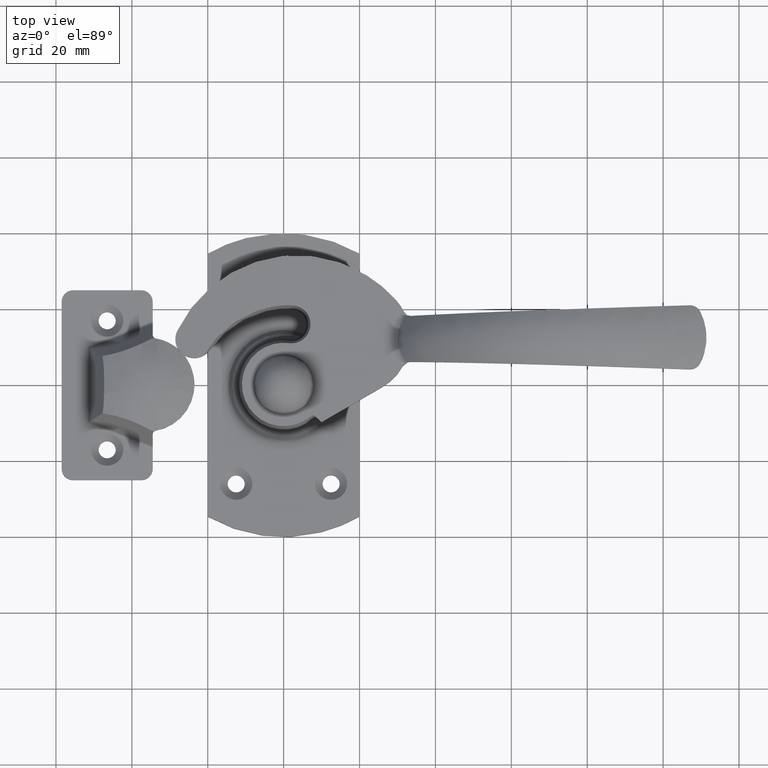
[diagram: clean part render]
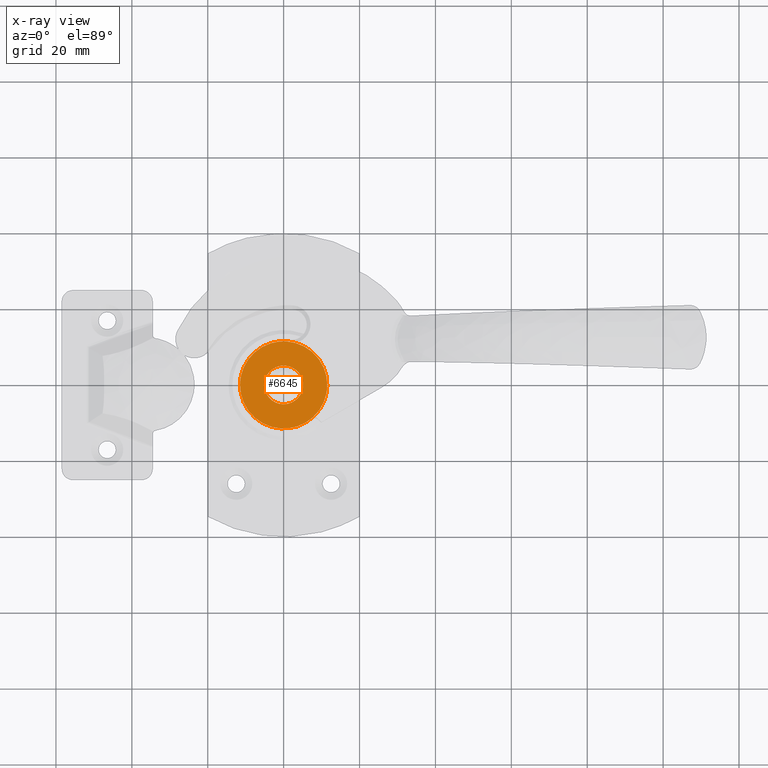
[diagram: x-ray — body ghosted, one internal face saturated and labeled with its STEP entity id]
A machine part, top view, then the same camera in x-ray: the body is ghosted and one INTERNAL B-rep face — a face not visible from any outside direction — is saturated and labeled: STEP entity #6645.
In plain terms, the highlighted face is a freeform B-spline surface patch.
Its self-contained STEP definition (entity closure, byte-faithful):
#6282=CARTESIAN_POINT('',(11.500000000000000,0.0,7.0));
#6283=VERTEX_POINT('',#6282);
#6284=CARTESIAN_POINT('',(0.902279601061048,11.464549337915949,7.0));
#6285=VERTEX_POINT('',#6284);
#6286=CARTESIAN_POINT('',(11.500000000000000,0.0,7.0));
#6287=CARTESIAN_POINT('',(11.499999999999998,10.630490653714393,6.999999999999998));
#6288=CARTESIAN_POINT('',(0.902279601061048,11.464549337915948,7.0));
#6296=(BOUNDED_CURVE()B_SPLINE_CURVE(2,(#6286,#6287,#6288),.UNSPECIFIED.,.F.,.U.)B_SPLINE_CURVE_WITH_KNOTS((3,3),(0.0,0.236331300627060),.UNSPECIFIED.)CURVE()GEOMETRIC_REPRESENTATION_ITEM()RATIONAL_B_SPLINE_CURVE((1.0,0.723120658611883,0.969723356159906))REPRESENTATION_ITEM(''));
#6297=EDGE_CURVE('',#6283,#6285,#6296,.T.);
#6338=CARTESIAN_POINT('',(-0.902279601061047,-11.464549337915949,7.0));
#6339=VERTEX_POINT('',#6338);
#6345=CARTESIAN_POINT('',(-0.902279601061047,-11.464549337915955,7.0));
#6346=CARTESIAN_POINT('',(-0.451836230779913,-11.500000000000004,7.0));
#6347=CARTESIAN_POINT('',(0.0,-11.500000000000000,7.0));
#6348=CARTESIAN_POINT('',(11.500000000000000,-11.500000000000000,6.999999999999999));
#6349=CARTESIAN_POINT('',(11.500000000000000,0.0,7.0));
#6357=(BOUNDED_CURVE()B_SPLINE_CURVE(2,(#6345,#6346,#6347,#6348,#6349),.UNSPECIFIED.,.F.,.U.)B_SPLINE_CURVE_WITH_KNOTS((3,2,3),(0.736331300627060,0.750000000000000,1.0),.UNSPECIFIED.)CURVE()GEOMETRIC_REPRESENTATION_ITEM()RATIONAL_B_SPLINE_CURVE((0.969723356159906,0.983986122574665,1.0,0.707106781186548,1.0))REPRESENTATION_ITEM(''));
#6358=EDGE_CURVE('',#6339,#6283,#6357,.T.);
#6381=CARTESIAN_POINT('',(-11.500000000000000,0.0,7.0));
#6382=VERTEX_POINT('',#6381);
#6383=CARTESIAN_POINT('',(0.902279601061048,11.464549337915948,7.0));
#6384=CARTESIAN_POINT('',(0.451836230779914,11.500000000000005,7.0));
#6385=CARTESIAN_POINT('',(0.0,11.500000000000000,7.0));
#6386=CARTESIAN_POINT('',(-11.500000000000000,11.500000000000000,6.999999999999999));
#6387=CARTESIAN_POINT('',(-11.500000000000000,0.0,7.0));
#6395=(BOUNDED_CURVE()B_SPLINE_CURVE(2,(#6383,#6384,#6385,#6386,#6387),.UNSPECIFIED.,.F.,.U.)B_SPLINE_CURVE_WITH_KNOTS((3,2,3),(0.236331300627060,0.250000000000000,0.500000000000000),.UNSPECIFIED.)CURVE()GEOMETRIC_REPRESENTATION_ITEM()RATIONAL_B_SPLINE_CURVE((0.969723356159906,0.983986122574665,1.0,0.707106781186548,1.0))REPRESENTATION_ITEM(''));
#6396=EDGE_CURVE('',#6285,#6382,#6395,.T.);
#6398=CARTESIAN_POINT('',(-11.500000000000000,0.0,7.0));
#6399=CARTESIAN_POINT('',(-11.500000000000000,-10.630490653714357,6.999999999999999));
#6400=CARTESIAN_POINT('',(-0.902279601061047,-11.464549337915951,7.0));
#6408=(BOUNDED_CURVE()B_SPLINE_CURVE(2,(#6398,#6399,#6400),.UNSPECIFIED.,.F.,.U.)B_SPLINE_CURVE_WITH_KNOTS((3,3),(0.500000000000000,0.736331300627060),.UNSPECIFIED.)CURVE()GEOMETRIC_REPRESENTATION_ITEM()RATIONAL_B_SPLINE_CURVE((1.0,0.723120658611883,0.969723356159905))REPRESENTATION_ITEM(''));
#6409=EDGE_CURVE('',#6382,#6339,#6408,.T.);
#6464=CARTESIAN_POINT('',(5.100000000000001,0.0,7.0));
#6465=VERTEX_POINT('',#6464);
#6466=CARTESIAN_POINT('',(0.400141388477912,5.084278402018025,7.0));
#6467=VERTEX_POINT('',#6466);
#6468=CARTESIAN_POINT('',(5.100000000000001,0.0,7.0));
#6469=CARTESIAN_POINT('',(5.100000000000001,4.714391506962220,6.999999999999999));
#6470=CARTESIAN_POINT('',(0.400141388477912,5.084278402018025,7.0));
#6478=(BOUNDED_CURVE()B_SPLINE_CURVE(2,(#6468,#6469,#6470),.UNSPECIFIED.,.F.,.U.)B_SPLINE_CURVE_WITH_KNOTS((3,3),(0.0,0.236331300614836),.UNSPECIFIED.)CURVE()GEOMETRIC_REPRESENTATION_ITEM()RATIONAL_B_SPLINE_CURVE((1.0,0.723120658626204,0.969723356134396))REPRESENTATION_ITEM(''));
#6479=EDGE_CURVE('',#6465,#6467,#6478,.T.);
#6481=CARTESIAN_POINT('',(-0.400141388477912,-5.084278402018025,7.0));
#6482=VERTEX_POINT('',#6481);
#6483=CARTESIAN_POINT('',(-0.400141388477912,-5.084278402018025,7.0));
#6484=CARTESIAN_POINT('',(-0.200379546006251,-5.100000000000000,7.0));
#6485=CARTESIAN_POINT('',(0.0,-5.100000000000001,7.0));
#6486=CARTESIAN_POINT('',(5.100000000000001,-5.100000000000001,6.999999999999999));
#6487=CARTESIAN_POINT('',(5.100000000000001,0.0,7.0));
#6495=(BOUNDED_CURVE()B_SPLINE_CURVE(2,(#6483,#6484,#6485,#6486,#6487),.UNSPECIFIED.,.F.,.U.)B_SPLINE_CURVE_WITH_KNOTS((3,2,3),(0.736331300614836,0.750000000000000,1.0),.UNSPECIFIED.)CURVE()GEOMETRIC_REPRESENTATION_ITEM()RATIONAL_B_SPLINE_CURVE((0.969723356134396,0.983986122560344,1.0,0.707106781186548,1.0))REPRESENTATION_ITEM(''));
#6496=EDGE_CURVE('',#6482,#6465,#6495,.T.);
#6563=CARTESIAN_POINT('',(-5.100000000000001,0.0,7.0));
#6564=VERTEX_POINT('',#6563);
#6565=CARTESIAN_POINT('',(0.400141388477912,5.084278402018025,7.0));
#6566=CARTESIAN_POINT('',(0.200379546006251,5.100000000000000,7.0));
#6567=CARTESIAN_POINT('',(0.0,5.100000000000001,7.0));
#6568=CARTESIAN_POINT('',(-5.100000000000001,5.100000000000001,6.999999999999999));
#6569=CARTESIAN_POINT('',(-5.100000000000001,0.0,7.0));
#6577=(BOUNDED_CURVE()B_SPLINE_CURVE(2,(#6565,#6566,#6567,#6568,#6569),.UNSPECIFIED.,.F.,.U.)B_SPLINE_CURVE_WITH_KNOTS((3,2,3),(0.236331300614836,0.250000000000000,0.500000000000000),.UNSPECIFIED.)CURVE()GEOMETRIC_REPRESENTATION_ITEM()RATIONAL_B_SPLINE_CURVE((0.969723356134396,0.983986122560344,1.0,0.707106781186548,1.0))REPRESENTATION_ITEM(''));
#6578=EDGE_CURVE('',#6467,#6564,#6577,.T.);
#6612=CARTESIAN_POINT('',(-5.100000000000001,0.0,7.0));
#6613=CARTESIAN_POINT('',(-5.100000000000000,-4.714391506962208,7.0));
#6614=CARTESIAN_POINT('',(-0.400141388477912,-5.084278402018026,7.0));
#6622=(BOUNDED_CURVE()B_SPLINE_CURVE(2,(#6612,#6613,#6614),.UNSPECIFIED.,.F.,.U.)B_SPLINE_CURVE_WITH_KNOTS((3,3),(0.500000000000000,0.736331300614836),.UNSPECIFIED.)CURVE()GEOMETRIC_REPRESENTATION_ITEM()RATIONAL_B_SPLINE_CURVE((1.0,0.723120658626204,0.969723356134395))REPRESENTATION_ITEM(''));
#6623=EDGE_CURVE('',#6564,#6482,#6622,.T.);
#6628=CARTESIAN_POINT('',(12.648849955421539,12.645340304081291,7.0));
#6629=CARTESIAN_POINT('',(-12.648850572329611,12.645340304081291,7.0));
#6630=CARTESIAN_POINT('',(12.648849955421539,-12.645340304081291,7.0));
#6631=CARTESIAN_POINT('',(-12.648850572329611,-12.645340304081291,7.0));
#6632=B_SPLINE_SURFACE_WITH_KNOTS('',1,1,((#6628,#6630),(#6629,#6631)),.UNSPECIFIED.,.F.,.F.,.U.,(2,2),(2,2),(0.0,25.297700527751150),(0.0,25.290680608162589),.UNSPECIFIED.);
#6633=ORIENTED_EDGE('',*,*,#6358,.F.);
#6634=ORIENTED_EDGE('',*,*,#6409,.F.);
#6635=ORIENTED_EDGE('',*,*,#6396,.F.);
#6636=ORIENTED_EDGE('',*,*,#6297,.F.);
#6637=EDGE_LOOP('',(#6633,#6634,#6635,#6636));
#6638=FACE_OUTER_BOUND('',#6637,.T.);
#6639=ORIENTED_EDGE('',*,*,#6623,.T.);
#6640=ORIENTED_EDGE('',*,*,#6496,.T.);
#6641=ORIENTED_EDGE('',*,*,#6479,.T.);
#6642=ORIENTED_EDGE('',*,*,#6578,.T.);
#6643=EDGE_LOOP('',(#6639,#6640,#6641,#6642));
#6644=FACE_BOUND('',#6643,.T.);
#6645=ADVANCED_FACE('',(#6638,#6644),#6632,.F.);